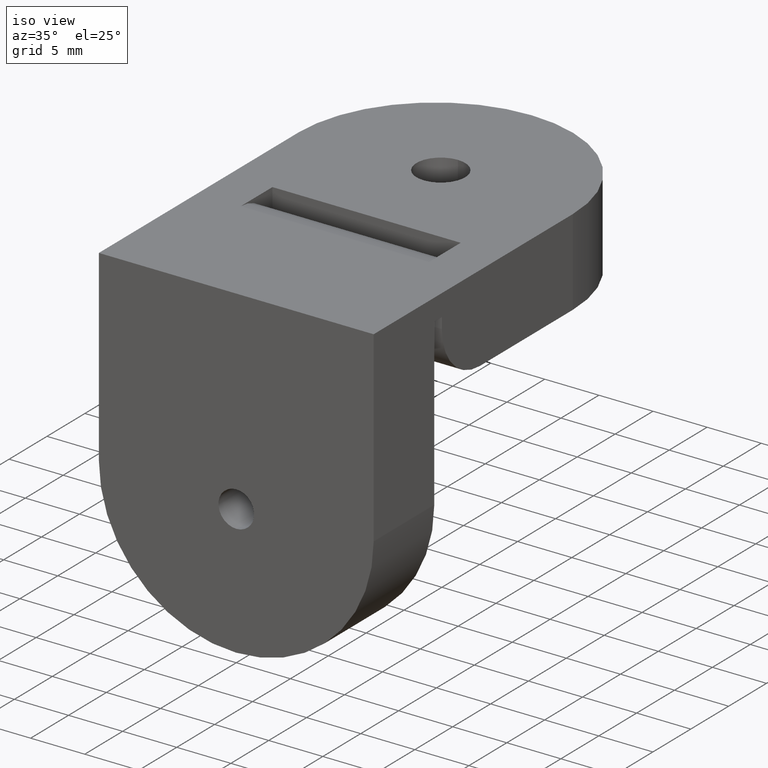
[diagram: clean part render]
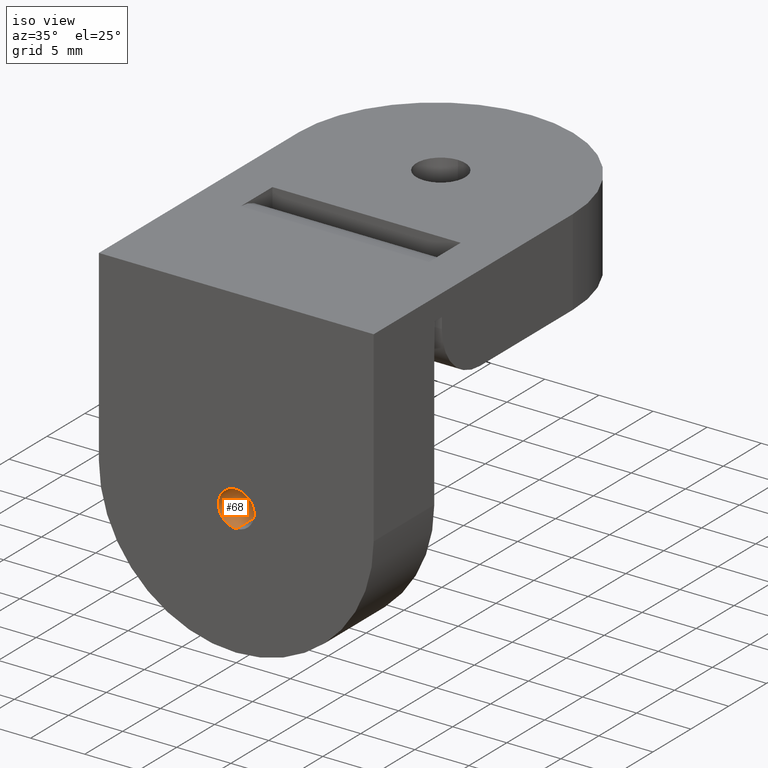
[diagram: same view with one face highlighted and labeled with its STEP entity id]
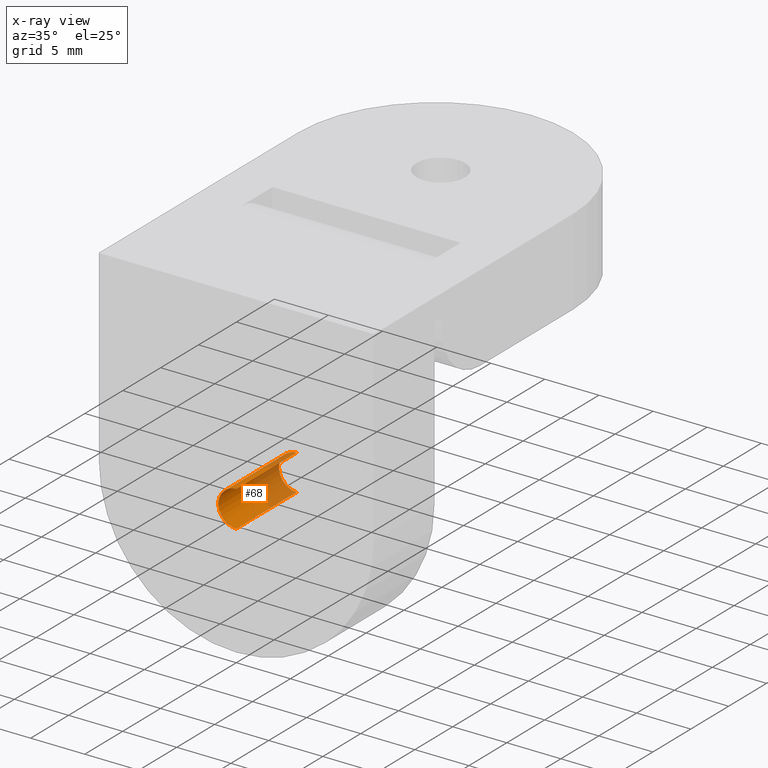
[diagram: x-ray of the same camera — body ghosted, the highlighted face saturated]
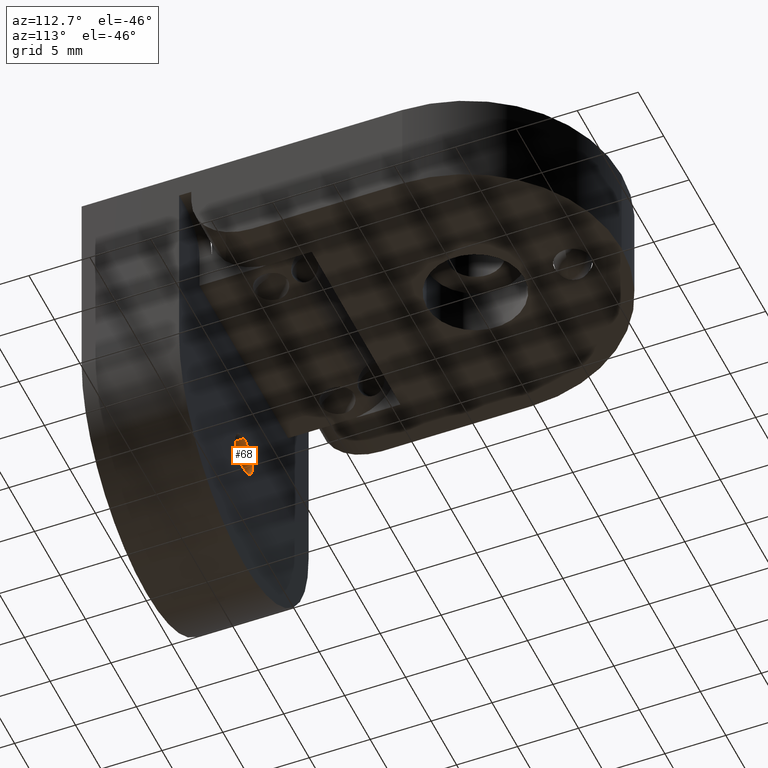
[diagram: same view with one face highlighted and labeled with its STEP entity id]
A machine part, iso view. The second image highlights one B-rep face of the part: STEP entity #68.
The next image is the same camera in x-ray: the body ghosted, the highlighted face saturated — about 40% of this face is hidden behind the body in this view.
A second angle (auxiliary view) of the same face is appended — the face is thin or edge-on in the first view.
In plain terms, the highlighted cylindrical surface (edge-blend (fillet) strip) has radius 1.65 mm, axis along (-0, 1, -0).
Its self-contained STEP definition (entity closure, byte-faithful):
#17 = CARTESIAN_POINT ( 'NONE',  ( 2.020667218593131500E-016, 0.0000000000000000000, -19.65000000000000600 ) ) ;
#68 = ADVANCED_FACE ( 'NONE', ( #919 ), #1794, .F. ) ;
#161 = DIRECTION ( 'NONE',  ( -0.0000000000000000000, 1.000000000000000000, -0.0000000000000000000 ) ) ;
#385 = CARTESIAN_POINT ( 'NONE',  ( 0.0000000000000000000, 8.000000000000000000, -18.00000000000000700 ) ) ;
#415 = ORIENTED_EDGE ( 'NONE', *, *, #614, .T. ) ;
#489 = CIRCLE ( 'NONE', #660, 1.649999999999998600 ) ;
#612 = VECTOR ( 'NONE', #1349, 1000.000000000000000 ) ;
#614 = EDGE_CURVE ( 'NONE', #646, #2303, #1026, .T. ) ;
#646 = VERTEX_POINT ( 'NONE', #1950 ) ;
#660 = AXIS2_PLACEMENT_3D ( 'NONE', #2119, #2128, #2005 ) ;
#919 = FACE_OUTER_BOUND ( 'NONE', #2082, .T. ) ;
#959 = EDGE_CURVE ( 'NONE', #1829, #2264, #489, .T. ) ;
#1011 = CARTESIAN_POINT ( 'NONE',  ( 0.0000000000000000000, 8.000000000000001800, -16.35000000000001600 ) ) ;
#1022 = VECTOR ( 'NONE', #1099, 1000.000000000000000 ) ;
#1026 = CIRCLE ( 'NONE', #2467, 1.649999999999988400 ) ;
#1099 = DIRECTION ( 'NONE',  ( -0.0000000000000000000, 1.000000000000000000, -0.0000000000000000000 ) ) ;
#1133 = ORIENTED_EDGE ( 'NONE', *, *, #1434, .F. ) ;
#1144 = AXIS2_PLACEMENT_3D ( 'NONE', #385, #161, #2867 ) ;
#1184 = LINE ( 'NONE', #2440, #612 ) ;
#1280 = CARTESIAN_POINT ( 'NONE',  ( 0.0000000000000000000, 8.000000000000000000, -16.35000000000001200 ) ) ;
#1349 = DIRECTION ( 'NONE',  ( -0.0000000000000000000, 1.000000000000000000, -0.0000000000000000000 ) ) ;
#1434 = EDGE_CURVE ( 'NONE', #2264, #2303, #1530, .T. ) ;
#1530 = LINE ( 'NONE', #1280, #1022 ) ;
#1623 = DIRECTION ( 'NONE',  ( -0.0000000000000000000, 1.000000000000000000, -0.0000000000000000000 ) ) ;
#1727 = CARTESIAN_POINT ( 'NONE',  ( 0.0000000000000000000, 8.000000000000001800, -18.00000000000000700 ) ) ;
#1794 = CYLINDRICAL_SURFACE ( 'NONE', #1144, 1.649999999999991700 ) ;
#1829 = VERTEX_POINT ( 'NONE', #17 ) ;
#1846 = DIRECTION ( 'NONE',  ( 0.0000000000000000000, 0.0000000000000000000, 1.000000000000000000 ) ) ;
#1855 = ORIENTED_EDGE ( 'NONE', *, *, #2491, .T. ) ;
#1950 = CARTESIAN_POINT ( 'NONE',  ( 2.020667218593124400E-016, 8.000000000000001800, -19.64999999999999500 ) ) ;
#2005 = DIRECTION ( 'NONE',  ( 0.0000000000000000000, 0.0000000000000000000, 1.000000000000000000 ) ) ;
#2082 = EDGE_LOOP ( 'NONE', ( #2719, #1855, #415, #1133 ) ) ;
#2119 = CARTESIAN_POINT ( 'NONE',  ( 0.0000000000000000000, 0.0000000000000000000, -18.00000000000000700 ) ) ;
#2128 = DIRECTION ( 'NONE',  ( -0.0000000000000000000, 1.000000000000000000, -0.0000000000000000000 ) ) ;
#2264 = VERTEX_POINT ( 'NONE', #2755 ) ;
#2303 = VERTEX_POINT ( 'NONE', #1011 ) ;
#2440 = CARTESIAN_POINT ( 'NONE',  ( 2.020667218593124400E-016, 8.000000000000000000, -19.64999999999999900 ) ) ;
#2467 = AXIS2_PLACEMENT_3D ( 'NONE', #1727, #1623, #1846 ) ;
#2491 = EDGE_CURVE ( 'NONE', #1829, #646, #1184, .T. ) ;
#2719 = ORIENTED_EDGE ( 'NONE', *, *, #959, .F. ) ;
#2755 = CARTESIAN_POINT ( 'NONE',  ( 0.0000000000000000000, 0.0000000000000000000, -16.35000000000000900 ) ) ;
#2867 = DIRECTION ( 'NONE',  ( 0.0000000000000000000, 0.0000000000000000000, 1.000000000000000000 ) ) ;